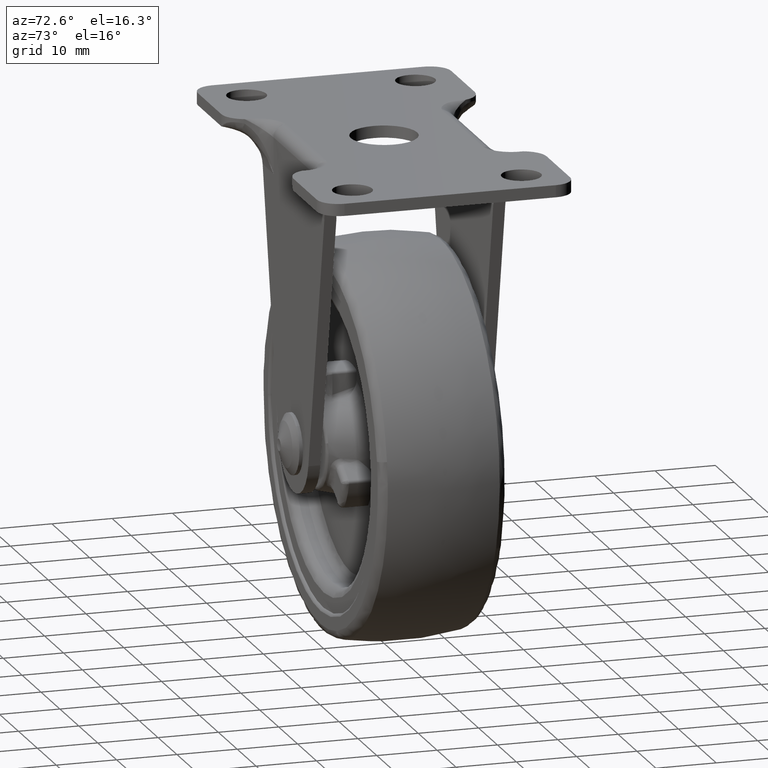
[diagram: clean part render]
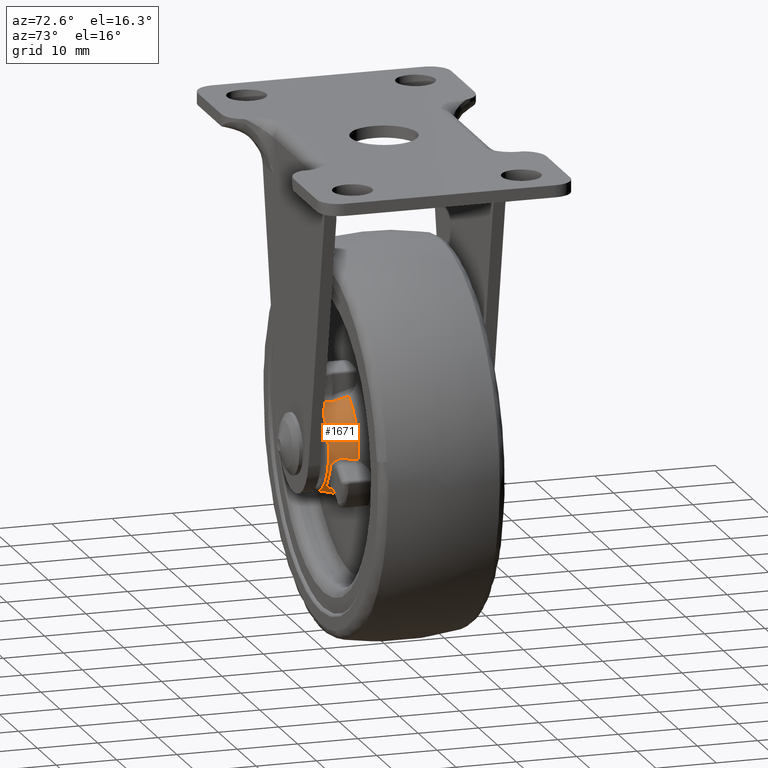
[diagram: same view with one face highlighted and labeled with its STEP entity id]
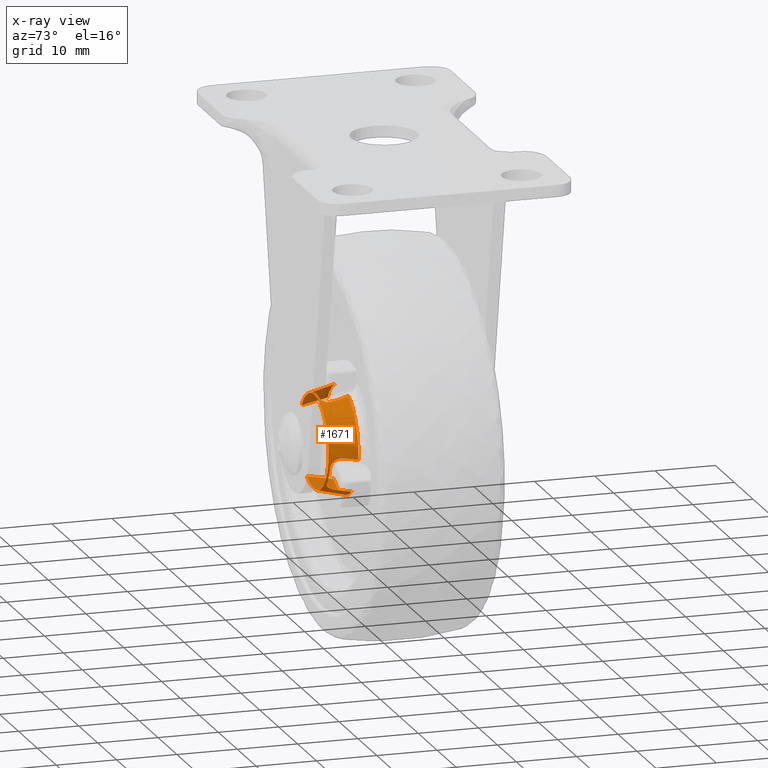
[diagram: x-ray of the same camera — body ghosted, the highlighted face saturated]
A machine part, auxiliary view. The second image highlights one B-rep face of the part: STEP entity #1671.
The next image is the same camera in x-ray: the body ghosted, the highlighted face saturated — about 8% of this face is hidden behind the body in this view.
In plain terms, the highlighted face is a freeform B-spline surface patch.
Its self-contained STEP definition (entity closure, byte-faithful):
#1216=CARTESIAN_POINT('',(-30.521903171111529,-11.620163000462121,-43.840625128461362));
#1217=VERTEX_POINT('',#1216);
#1218=CARTESIAN_POINT('',(-27.779560120021689,-11.620162999858840,-54.749107965422908));
#1219=VERTEX_POINT('',#1218);
#1234=CARTESIAN_POINT('',(-31.482304838477440,-7.019343857627149,-43.228124970851880));
#1235=VERTEX_POINT('',#1234);
#1236=CARTESIAN_POINT('',(-30.521903171111529,-11.620163000462121,-43.840625128461362));
#1237=CARTESIAN_POINT('',(-31.482304838477440,-7.019343857627149,-43.228124970851880));
#1238=QUASI_UNIFORM_CURVE('',1,(#1236,#1237),.UNSPECIFIED.,.F.,.U.);
#1239=EDGE_CURVE('',#1217,#1235,#1238,.T.);
#1345=CARTESIAN_POINT('',(-28.336130149566038,-7.019343857627146,-55.742967919150352));
#1346=VERTEX_POINT('',#1345);
#1354=CARTESIAN_POINT('',(-27.779560120021689,-11.620162999858840,-54.749107965422908));
#1355=CARTESIAN_POINT('',(-28.336130149566038,-7.019343857627146,-55.742967919150352));
#1356=QUASI_UNIFORM_CURVE('',1,(#1354,#1355),.UNSPECIFIED.,.F.,.U.);
#1357=EDGE_CURVE('',#1219,#1346,#1356,.T.);
#1362=CARTESIAN_POINT('',(-30.497893129343801,-11.735183479433900,-43.855937632454832));
#1363=CARTESIAN_POINT('',(-26.353834761798623,-11.735183479433903,-37.358044503111032));
#1364=CARTESIAN_POINT('',(-19.855941632454829,-11.735183479433900,-41.502102870656202));
#1365=CARTESIAN_POINT('',(-13.358048503111032,-11.735183479433903,-45.646161238201373));
#1366=CARTESIAN_POINT('',(-17.502106870656199,-11.735183479433900,-52.144054367545174));
#1367=CARTESIAN_POINT('',(-21.415562645197081,-11.735183479433905,-58.280362096348632));
#1368=CARTESIAN_POINT('',(-27.765645869159691,-11.735183479433902,-54.724261466359522));
#1369=CARTESIAN_POINT('',(-31.506915131205790,-6.901447867081980,-43.212429654311833));
#1370=CARTESIAN_POINT('',(-26.719348785517614,-6.901447867081980,-35.705514523106025));
#1371=CARTESIAN_POINT('',(-19.212433654311820,-6.901447867081980,-40.493080868794209));
#1372=CARTESIAN_POINT('',(-11.705518523106027,-6.901447867081980,-45.280647214482386));
#1373=CARTESIAN_POINT('',(-16.493084868794210,-6.901447867081980,-52.787562345688180));
#1374=CARTESIAN_POINT('',(-21.014239616098028,-6.901447867081981,-59.876743472885565));
#1375=CARTESIAN_POINT('',(-28.350392256576267,-6.901447867081981,-55.768435580470054));
#1383=(BOUNDED_SURFACE()B_SPLINE_SURFACE(2,1,((#1362,#1369),(#1363,#1370),(#1364,#1371),(#1365,#1372),(#1366,#1373),(#1367,#1374),(#1368,#1375)),.UNSPECIFIED.,.F.,.F.,.U.)B_SPLINE_SURFACE_WITH_KNOTS((3,2,2,3),(2,2),(0.0,14.752011537330560,29.504023074661131,43.665954150498472),(0.0,4.979681504704345),.UNSPECIFIED.)GEOMETRIC_REPRESENTATION_ITEM()RATIONAL_B_SPLINE_SURFACE(((1.0,1.0),(0.707106781186548,0.707106781186548),(1.0,1.0),(0.707106781186548,0.707106781186548),(1.0,1.0),(0.718822509939086,0.718822509939086),(0.977505800795127,0.977505800795127)))REPRESENTATION_ITEM('')SURFACE());
#1384=CARTESIAN_POINT('',(-24.0,-11.620162999999980,-55.735342599999981));
#1385=VERTEX_POINT('',#1384);
#1386=CARTESIAN_POINT('',(-27.779560120021689,-11.620162999858840,-54.749107965422908));
#1387=CARTESIAN_POINT('',(-27.169534373537310,-11.620162999868970,-55.090993053788772));
#1388=CARTESIAN_POINT('',(-25.933234538840392,-11.620162999903810,-55.576998136075588));
#1389=CARTESIAN_POINT('',(-24.617021184018359,-11.620162999965791,-55.735477880560737));
#1390=CARTESIAN_POINT('',(-24.0,-11.620162999999980,-55.735342599999981));
#1391=B_SPLINE_CURVE_WITH_KNOTS('',3,(#1386,#1387,#1388,#1389,#1390),.UNSPECIFIED.,.F.,.U.,(4,1,4),(0.000000010022046,2.097847339258627,3.948896073668416),.UNSPECIFIED.);
#1392=EDGE_CURVE('',#1219,#1385,#1391,.T.);
#1393=ORIENTED_EDGE('',*,*,#1392,.F.);
#1394=ORIENTED_EDGE('',*,*,#1357,.T.);
#1395=CARTESIAN_POINT('',(-18.780244909564299,-7.019343857627150,-55.177028507283012));
#1396=VERTEX_POINT('',#1395);
#1397=CARTESIAN_POINT('',(-28.336130149566038,-7.019343857627146,-55.742967919150352));
#1398=CARTESIAN_POINT('',(-27.830753127024920,-7.019343857627145,-56.026028487641788));
#1399=CARTESIAN_POINT('',(-26.594687953625790,-7.019343857627158,-56.567129219824920));
#1400=CARTESIAN_POINT('',(-24.820395861691971,-7.019343857627105,-56.900408018629093));
#1401=CARTESIAN_POINT('',(-23.262727862494671,-7.019343857627209,-56.870365145815207));
#1402=CARTESIAN_POINT('',(-21.985431716029129,-7.019343857627066,-56.673955675565153));
#1403=CARTESIAN_POINT('',(-20.468463085708400,-7.019343857627294,-56.213014599870370));
#1404=CARTESIAN_POINT('',(-19.376362099764080,-7.019343857627004,-55.610832839058823));
#1405=CARTESIAN_POINT('',(-18.780244909564299,-7.019343857627150,-55.177028507283012));
#1406=B_SPLINE_CURVE_WITH_KNOTS('',3,(#1397,#1398,#1399,#1400,#1401,#1402,#1403,#1404,#1405),.UNSPECIFIED.,.F.,.U.,(4,1,1,1,1,1,4),(0.000000067972939,1.737769646292826,4.028486071667845,5.371273599984172,6.398145603506757,7.898971404737543,10.110677664032149),.UNSPECIFIED.);
#1407=EDGE_CURVE('',#1346,#1396,#1406,.T.);
#1408=ORIENTED_EDGE('',*,*,#1407,.T.);
#1409=CARTESIAN_POINT('',(-19.287921292214548,-9.259671928813642,-54.856732905553400));
#1410=VERTEX_POINT('',#1409);
#1411=CARTESIAN_POINT('',(-18.780244909564299,-7.019343857627150,-55.177028507283012));
#1412=CARTESIAN_POINT('',(-19.287921292214548,-9.259671928813642,-54.856732905553400));
#1413=QUASI_UNIFORM_CURVE('',1,(#1411,#1412),.UNSPECIFIED.,.F.,.U.);
#1414=EDGE_CURVE('',#1396,#1410,#1413,.T.);
#1415=ORIENTED_EDGE('',*,*,#1414,.T.);
#1416=CARTESIAN_POINT('',(-18.290854156653150,-11.259671928813640,-53.350696526531607));
#1417=VERTEX_POINT('',#1416);
#1418=CARTESIAN_POINT('',(-18.290854156653150,-11.259671928813640,-53.350696526531607));
#1419=CARTESIAN_POINT('',(-18.334300139264329,-11.259671928813640,-53.397052970852272));
#1420=CARTESIAN_POINT('',(-18.377351462773881,-11.256040720759270,-53.443167168678173));
#1421=CARTESIAN_POINT('',(-18.462171558801451,-11.241864181647820,-53.534405695467413));
#1422=CARTESIAN_POINT('',(-18.545874961909359,-11.220772964573699,-53.624831796039082));
#1423=CARTESIAN_POINT('',(-18.627273956315740,-11.186088272106300,-53.713761390287210));
#1424=CARTESIAN_POINT('',(-18.687377527976931,-11.154898025664069,-53.779951483604961));
#1425=CARTESIAN_POINT('',(-18.707316924522789,-11.143595865355980,-53.802000704688027));
#1426=CARTESIAN_POINT('',(-18.746484423029511,-11.119465066968750,-53.845524255424692));
#1427=CARTESIAN_POINT('',(-18.765711931289481,-11.106645161153940,-53.866997125230291));
#1428=CARTESIAN_POINT('',(-18.860078490045339,-11.038881077089620,-53.972993606184929));
#1429=CARTESIAN_POINT('',(-18.929974365507931,-10.973063742897921,-54.053448602608107));
#1430=CARTESIAN_POINT('',(-19.025754669254280,-10.857462103082630,-54.168618588551183));
#1431=CARTESIAN_POINT('',(-19.056218692109478,-10.815937940027030,-54.206174512332353));
#1432=CARTESIAN_POINT('',(-19.112617599089400,-10.729096722169720,-54.277955144211226));
#1433=CARTESIAN_POINT('',(-19.164848771095169,-10.638083880997060,-54.346827350406890));
#1434=CARTESIAN_POINT('',(-19.208686487627141,-10.539033446446391,-54.410359422965918));
#1435=CARTESIAN_POINT('',(-19.248179846135049,-10.435991169124121,-54.471366865916991));
#1436=CARTESIAN_POINT('',(-19.265793574935302,-10.382247285626750,-54.500704051109402));
#1437=CARTESIAN_POINT('',(-19.310915623145640,-10.218312637271250,-54.583403811774218));
#1438=CARTESIAN_POINT('',(-19.331163106192790,-10.104624517127110,-54.632070340796972));
#1439=CARTESIAN_POINT('',(-19.346909591275949,-9.927952312775975,-54.696399509141131));
#1440=CARTESIAN_POINT('',(-19.349703744634500,-9.867739434923365,-54.716468421545208));
#1441=CARTESIAN_POINT('',(-19.350275356402399,-9.746807161040389,-54.753247247728282));
#1442=CARTESIAN_POINT('',(-19.348081989878981,-9.686205582645259,-54.769942433162058));
#1443=CARTESIAN_POINT('',(-19.334368829839999,-9.504029971811729,-54.815235167064017));
#1444=CARTESIAN_POINT('',(-19.315758360884200,-9.382091503685279,-54.839086788816360));
#1445=CARTESIAN_POINT('',(-19.287921292214548,-9.259671928813642,-54.856732905553400));
#1446=B_SPLINE_CURVE_WITH_KNOTS('',3,(#1418,#1419,#1420,#1421,#1422,#1423,#1424,#1425,#1426,#1427,#1428,#1429,#1430,#1431,#1432,#1433,#1434,#1435,#1436,#1437,#1438,#1439,#1440,#1441,#1442,#1443,#1444,#1445),.UNSPECIFIED.,.F.,.U.,(4,2,1,2,2,2,2,2,1,2,2,2,2,2,4),(0.0,0.062499999999994,0.124999999999988,0.187499999999983,0.218749999999983,0.249999999999983,0.374999999999982,0.437499999999983,0.499999999999984,0.562499999999986,0.624999999999987,0.749999999999991,0.812499999999993,0.874999999999995,1.0),.UNSPECIFIED.);
#1447=EDGE_CURVE('',#1417,#1410,#1446,.T.);
#1448=ORIENTED_EDGE('',*,*,#1447,.F.);
#1449=CARTESIAN_POINT('',(-16.511584264267050,-11.259671928813640,-50.268910311748492));
#1450=VERTEX_POINT('',#1449);
#1451=CARTESIAN_POINT('',(-18.290854156653150,-11.259671928813640,-53.350696526531607));
#1452=CARTESIAN_POINT('',(-17.804750458521919,-11.259671928813690,-52.832451765611687));
#1453=CARTESIAN_POINT('',(-17.106615071985811,-11.259671928813550,-51.846950203180690));
#1454=CARTESIAN_POINT('',(-16.652499872925251,-11.259671928813720,-50.734180553218749));
#1455=CARTESIAN_POINT('',(-16.511584264267050,-11.259671928813640,-50.268910311748492));
#1456=B_SPLINE_CURVE_WITH_KNOTS('',3,(#1451,#1452,#1453,#1454,#1455),.UNSPECIFIED.,.F.,.U.,(4,1,4),(9.460093E-009,2.131538586693377,3.589974836920728),.UNSPECIFIED.);
#1457=EDGE_CURVE('',#1417,#1450,#1456,.T.);
#1458=ORIENTED_EDGE('',*,*,#1457,.T.);
#1459=CARTESIAN_POINT('',(-15.705852234808701,-9.259671928813642,-48.652406598867501));
#1460=VERTEX_POINT('',#1459);
#1461=CARTESIAN_POINT('',(-15.705852234808701,-9.259671928813642,-48.652406598867501));
#1462=CARTESIAN_POINT('',(-15.735076503370641,-9.382191059832609,-48.637109626664369));
#1463=CARTESIAN_POINT('',(-15.765158337861390,-9.504630155524387,-48.632870863589261));
#1464=CARTESIAN_POINT('',(-15.811596290839530,-9.688170759322560,-48.643865917060673));
#1465=CARTESIAN_POINT('',(-15.827341824850100,-9.749483159050278,-48.650485907804772));
#1466=CARTESIAN_POINT('',(-15.858827752049899,-9.870054385003327,-48.669479850739393));
#1467=CARTESIAN_POINT('',(-15.890421295934690,-9.989026963739235,-48.694224691625742));
#1468=CARTESIAN_POINT('',(-15.922394395663030,-10.104745427838370,-48.730515129554803));
#1469=CARTESIAN_POINT('',(-15.946609864804509,-10.190255428703519,-48.762183770155133));
#1470=CARTESIAN_POINT('',(-15.954721308099010,-10.218545220367410,-48.773482907957707));
#1471=CARTESIAN_POINT('',(-15.971043688226050,-10.274682594482821,-48.797602195854317));
#1472=CARTESIAN_POINT('',(-15.979274595429620,-10.302595338364700,-48.810457645404959));
#1473=CARTESIAN_POINT('',(-16.020310841163390,-10.439595958558430,-48.877927514606199));
#1474=CARTESIAN_POINT('',(-16.052981431155381,-10.541893954328490,-48.942319718475332));
#1475=CARTESIAN_POINT('',(-16.102886885320959,-10.684180723641550,-49.054281668186661));
#1476=CARTESIAN_POINT('',(-16.119674282041039,-10.729736717300860,-49.094181740936193));
#1477=CARTESIAN_POINT('',(-16.145258114953350,-10.795101428867341,-49.158044096837543));
#1478=CARTESIAN_POINT('',(-16.153871982533389,-10.816434282285430,-49.180052387595588));
#1479=CARTESIAN_POINT('',(-16.171055438345991,-10.857573954333279,-49.224886910652351));
#1480=CARTESIAN_POINT('',(-16.179647437374509,-10.877440922630271,-49.247766974352707));
#1481=CARTESIAN_POINT('',(-16.222675754436871,-10.973296533382920,-49.364434776455838));
#1482=CARTESIAN_POINT('',(-16.257321139155259,-11.038964112227880,-49.464946722687529));
#1483=CARTESIAN_POINT('',(-16.301909665432831,-11.106682574983290,-49.599599862297843));
#1484=CARTESIAN_POINT('',(-16.310891306424359,-11.119500492379061,-49.626986127054543));
#1485=CARTESIAN_POINT('',(-16.329007597400050,-11.143637709667511,-49.682692141943328));
#1486=CARTESIAN_POINT('',(-16.338143200384959,-11.154950176182449,-49.711016711509288));
#1487=CARTESIAN_POINT('',(-16.365433070396300,-11.186153245148081,-49.796225589300207));
#1488=CARTESIAN_POINT('',(-16.383597491654150,-11.203492008859930,-49.853727414862831));
#1489=CARTESIAN_POINT('',(-16.438180054438739,-11.245298678444090,-50.028230114689833));
#1490=CARTESIAN_POINT('',(-16.474707061706159,-11.259671928813640,-50.147199314327032));
#1491=CARTESIAN_POINT('',(-16.511584264267050,-11.259671928813640,-50.268910311748492));
#1492=B_SPLINE_CURVE_WITH_KNOTS('',3,(#1461,#1462,#1463,#1464,#1465,#1466,#1467,#1468,#1469,#1470,#1471,#1472,#1473,#1474,#1475,#1476,#1477,#1478,#1479,#1480,#1481,#1482,#1483,#1484,#1485,#1486,#1487,#1488,#1489,#1490,#1491),.UNSPECIFIED.,.F.,.U.,(4,2,2,1,2,2,2,2,2,2,2,2,2,2,2,4),(0.0,0.124999999999996,0.187499999999993,0.249999999999989,0.312499999999986,0.343749999999985,0.374999999999984,0.499999999999983,0.562499999999982,0.593749999999981,0.624999999999981,0.749999999999995,0.781249999999997,0.812499999999999,0.874999999999998,1.0),.UNSPECIFIED.);
#1493=EDGE_CURVE('',#1460,#1450,#1492,.T.);
#1494=ORIENTED_EDGE('',*,*,#1493,.F.);
#1495=CARTESIAN_POINT('',(-15.174629878417500,-7.019343857627150,-48.931919297168299));
#1496=VERTEX_POINT('',#1495);
#1497=CARTESIAN_POINT('',(-15.705852234808701,-9.259671928813642,-48.652406598867501));
#1498=CARTESIAN_POINT('',(-15.174629878417500,-7.019343857627150,-48.931919297168299));
#1499=QUASI_UNIFORM_CURVE('',1,(#1497,#1498),.UNSPECIFIED.,.F.,.U.);
#1500=EDGE_CURVE('',#1460,#1496,#1499,.T.);
#1501=ORIENTED_EDGE('',*,*,#1500,.T.);
#1502=CARTESIAN_POINT('',(-20.394385070124098,-7.019343857627150,-39.891039236508043));
#1503=VERTEX_POINT('',#1502);
#1504=CARTESIAN_POINT('',(-15.174629878417500,-7.019343857627150,-48.931919297168299));
#1505=CARTESIAN_POINT('',(-15.079585592816130,-7.019343857627152,-48.035914164135740));
#1506=CARTESIAN_POINT('',(-15.152244269863710,-7.019343857627146,-46.508759335802907));
#1507=CARTESIAN_POINT('',(-15.726971495341139,-7.019343857627167,-44.667940005861809));
#1508=CARTESIAN_POINT('',(-16.459015610190580,-7.019343857627118,-43.242626054752662));
#1509=CARTESIAN_POINT('',(-17.297833918362048,-7.019343857627212,-42.119506014690621));
#1510=CARTESIAN_POINT('',(-18.604246125481239,-7.019343857627115,-40.872126375109929));
#1511=CARTESIAN_POINT('',(-19.650636600251250,-7.019343857627169,-40.221434303263877));
#1512=CARTESIAN_POINT('',(-20.394385070124098,-7.019343857627150,-39.891039236508043));
#1513=B_SPLINE_CURVE_WITH_KNOTS('',3,(#1504,#1505,#1506,#1507,#1508,#1509,#1510,#1511,#1512),.UNSPECIFIED.,.F.,.U.,(4,1,1,1,1,1,4),(0.000000085950179,2.702962895313599,4.534030465439199,5.754666997979720,7.498530175892071,8.719239321388466,11.160624258728950),.UNSPECIFIED.);
#1514=EDGE_CURVE('',#1496,#1503,#1513,.T.);
#1515=ORIENTED_EDGE('',*,*,#1514,.T.);
#1516=CARTESIAN_POINT('',(-20.417931006617248,-9.259671928813591,-40.490847681649342));
#1517=VERTEX_POINT('',#1516);
#1518=CARTESIAN_POINT('',(-20.394385070124098,-7.019343857627150,-39.891039236508043));
#1519=CARTESIAN_POINT('',(-20.417931006617248,-9.259671928813591,-40.490847681649342));
#1520=QUASI_UNIFORM_CURVE('',1,(#1518,#1519),.UNSPECIFIED.,.F.,.U.);
#1521=EDGE_CURVE('',#1503,#1517,#1520,.T.);
#1522=ORIENTED_EDGE('',*,*,#1521,.T.);
#1523=CARTESIAN_POINT('',(-22.220730337654299,-11.259671928813640,-40.380380402485500));
#1524=VERTEX_POINT('',#1523);
#1525=CARTESIAN_POINT('',(-22.220730337654299,-11.259671928813640,-40.380380402485500));
#1526=CARTESIAN_POINT('',(-22.158861487937902,-11.259671928813640,-40.394827504958840));
#1527=CARTESIAN_POINT('',(-22.097399759390751,-11.256040720759261,-40.409053945871683));
#1528=CARTESIAN_POINT('',(-21.975974829373609,-11.241864181647809,-40.436891040388382));
#1529=CARTESIAN_POINT('',(-21.855811827559361,-11.220772964573690,-40.464167263577181));
#1530=CARTESIAN_POINT('',(-21.738097042589111,-11.186088272106300,-40.490196063451563));
#1531=CARTESIAN_POINT('',(-21.650722954466492,-11.154898025664060,-40.509152236709440));
#1532=CARTESIAN_POINT('',(-21.621658070601960,-11.143595865355969,-40.515395650112772));
#1533=CARTESIAN_POINT('',(-21.564381820747759,-11.119465066968729,-40.527553923453937));
#1534=CARTESIAN_POINT('',(-21.536172015873959,-11.106645161153930,-40.533468999155751));
#1535=CARTESIAN_POINT('',(-21.397193091277579,-11.038881077089600,-40.562194595828743));
#1536=CARTESIAN_POINT('',(-21.292569082782421,-10.973063742897899,-40.582498701387493));
#1537=CARTESIAN_POINT('',(-21.144938797329051,-10.857462103082611,-40.607861884642489));
#1538=CARTESIAN_POINT('',(-21.097182401844361,-10.815937940027000,-40.615466540445972));
#1539=CARTESIAN_POINT('',(-21.006819097647590,-10.729096722169700,-40.628419110696832));
#1540=CARTESIAN_POINT('',(-20.921059012090730,-10.638083385736341,-40.639216601025517));
#1541=CARTESIAN_POINT('',(-20.844119184407390,-10.539033446446361,-40.645415069306473));
#1542=CARTESIAN_POINT('',(-20.771538509737880,-10.435991169124090,-40.649113599579557));
#1543=CARTESIAN_POINT('',(-20.737324897685610,-10.382247285626720,-40.649698943579750));
#1544=CARTESIAN_POINT('',(-20.643143779957811,-10.218312637271220,-40.647425903268271));
#1545=CARTESIAN_POINT('',(-20.590873587986518,-10.104624517127069,-40.640627473438421));
#1546=CARTESIAN_POINT('',(-20.527289651454559,-9.927952312775927,-40.622099745368679));
#1547=CARTESIAN_POINT('',(-20.508512386807059,-9.867739434923337,-40.614485096957210));
#1548=CARTESIAN_POINT('',(-20.476375183127200,-9.746807161040355,-40.596590714177758));
#1549=CARTESIAN_POINT('',(-20.463013411682361,-9.686205582645227,-40.586343610331802));
#1550=CARTESIAN_POINT('',(-20.430645333535900,-9.504029971811686,-40.551821298420897));
#1551=CARTESIAN_POINT('',(-20.419294457654839,-9.382091503685226,-40.523778348652677));
#1552=CARTESIAN_POINT('',(-20.417931006617248,-9.259671928813591,-40.490847681649342));
#1553=B_SPLINE_CURVE_WITH_KNOTS('',3,(#1525,#1526,#1527,#1528,#1529,#1530,#1531,#1532,#1533,#1534,#1535,#1536,#1537,#1538,#1539,#1540,#1541,#1542,#1543,#1544,#1545,#1546,#1547,#1548,#1549,#1550,#1551,#1552),.UNSPECIFIED.,.F.,.U.,(4,2,1,2,2,2,2,2,1,2,2,2,2,2,4),(0.0,0.062500000000001,0.125000000000002,0.187500000000002,0.218750000000002,0.250000000000003,0.375000000000003,0.437500000000004,0.500000000000004,0.562500000000004,0.625000000000004,0.750000000000002,0.812500000000002,0.875000000000001,1.0),.UNSPECIFIED.);
#1554=EDGE_CURVE('',#1524,#1517,#1553,.T.);
#1555=ORIENTED_EDGE('',*,*,#1554,.F.);
#1556=CARTESIAN_POINT('',(-25.779270434882200,-11.259671928813640,-40.380380582881912));
#1557=VERTEX_POINT('',#1556);
#1558=CARTESIAN_POINT('',(-22.220730337654299,-11.259671928813640,-40.380380402485500));
#1559=CARTESIAN_POINT('',(-22.766951346414139,-11.259671928813610,-40.252733299002308));
#1560=CARTESIAN_POINT('',(-23.961621593393971,-11.259671928813709,-40.106590366577102));
#1561=CARTESIAN_POINT('',(-25.160227953546471,-11.259671928813621,-40.235666794887983));
#1562=CARTESIAN_POINT('',(-25.779270434882200,-11.259671928813640,-40.380380582881912));
#1563=B_SPLINE_CURVE_WITH_KNOTS('',3,(#1558,#1559,#1560,#1561,#1562),.UNSPECIFIED.,.F.,.U.,(4,1,4),(9.461059E-009,1.682806638364058,3.589974836920706),.UNSPECIFIED.);
#1564=EDGE_CURVE('',#1524,#1557,#1563,.T.);
#1565=ORIENTED_EDGE('',*,*,#1564,.T.);
#1566=CARTESIAN_POINT('',(-27.582069730278199,-9.259671928813591,-40.490848033168653));
#1567=VERTEX_POINT('',#1566);
#1568=CARTESIAN_POINT('',(-27.582069730278199,-9.259671928813591,-40.490848033168653));
#1569=CARTESIAN_POINT('',(-27.580705162526140,-9.382191059832557,-40.523805478251880));
#1570=CARTESIAN_POINT('',(-27.569335121784430,-9.504630155524337,-40.551976492650873));
#1571=CARTESIAN_POINT('',(-27.536594149673171,-9.688170759322519,-40.586695412894002));
#1572=CARTESIAN_POINT('',(-27.522988302510679,-9.749483159050252,-40.597021449971251));
#1573=CARTESIAN_POINT('',(-27.490796101811370,-9.870054385003298,-40.614792091320680));
#1574=CARTESIAN_POINT('',(-27.453569669048822,-9.989026963739207,-40.629780482477337));
#1575=CARTESIAN_POINT('',(-27.406154678023590,-10.104745427838351,-40.639324780115253));
#1576=CARTESIAN_POINT('',(-27.366621096189640,-10.190255428703489,-40.644461671256160));
#1577=CARTESIAN_POINT('',(-27.352780034164510,-10.218545220367391,-40.645836818309263));
#1578=CARTESIAN_POINT('',(-27.323730928061309,-10.274682594482810,-40.647912770201202));
#1579=CARTESIAN_POINT('',(-27.308482328571639,-10.302595338364689,-40.648613220160392));
#1580=CARTESIAN_POINT('',(-27.229533584986449,-10.439595958558421,-40.650416716841150));
#1581=CARTESIAN_POINT('',(-27.157433005634111,-10.541893954328479,-40.646514175796263));
#1582=CARTESIAN_POINT('',(-27.035518385844071,-10.684180723641539,-40.633752592035371));
#1583=CARTESIAN_POINT('',(-26.992570210870088,-10.729736717300860,-40.628340867683619));
#1584=CARTESIAN_POINT('',(-26.924471871857840,-10.795101428867341,-40.618565938961183));
#1585=CARTESIAN_POINT('',(-26.901105199177469,-10.816434282285440,-40.615021621731302));
#1586=CARTESIAN_POINT('',(-26.853685635337449,-10.857573954333279,-40.607485669461447));
#1587=CARTESIAN_POINT('',(-26.829574919418480,-10.877440922630280,-40.603486527039252));
#1588=CARTESIAN_POINT('',(-26.707023480462301,-10.973296533382930,-40.582416241645781));
#1589=CARTESIAN_POINT('',(-26.602654889282640,-11.038964112227889,-40.562164051819963));
#1590=CARTESIAN_POINT('',(-26.463747586541970,-11.106682574983310,-40.533452278488468));
#1591=CARTESIAN_POINT('',(-26.435539565052132,-11.119500492379061,-40.527537475376448));
#1592=CARTESIAN_POINT('',(-26.378238595527019,-11.143637709667519,-40.515373636139380));
#1593=CARTESIAN_POINT('',(-26.349140997239161,-11.154950176182471,-40.509123015620212));
#1594=CARTESIAN_POINT('',(-26.261703009438580,-11.186153245148089,-40.490152297420543));
#1595=CARTESIAN_POINT('',(-26.202822757108461,-11.203492008859950,-40.477132234893588));
#1596=CARTESIAN_POINT('',(-26.024407704637021,-11.245298678444090,-40.437150770955171));
#1597=CARTESIAN_POINT('',(-25.903113851849550,-11.259671928813599,-40.409299487354403));
#1598=CARTESIAN_POINT('',(-25.779270434882200,-11.259671928813599,-40.380380582881912));
#1599=B_SPLINE_CURVE_WITH_KNOTS('',3,(#1568,#1569,#1570,#1571,#1572,#1573,#1574,#1575,#1576,#1577,#1578,#1579,#1580,#1581,#1582,#1583,#1584,#1585,#1586,#1587,#1588,#1589,#1590,#1591,#1592,#1593,#1594,#1595,#1596,#1597,#1598),.UNSPECIFIED.,.F.,.U.,(4,2,2,1,2,2,2,2,2,2,2,2,2,2,2,4),(0.0,0.125000000000005,0.187500000000008,0.250000000000011,0.312500000000013,0.343750000000014,0.375000000000014,0.500000000000018,0.562500000000018,0.593750000000016,0.625000000000015,0.750000000000011,0.781250000000011,0.812500000000010,0.875000000000006,1.0),.UNSPECIFIED.);
#1600=EDGE_CURVE('',#1567,#1557,#1599,.T.);
#1601=ORIENTED_EDGE('',*,*,#1600,.F.);
#1602=CARTESIAN_POINT('',(-27.605615811064951,-7.019343857627150,-39.891039628325252));
#1603=VERTEX_POINT('',#1602);
#1604=CARTESIAN_POINT('',(-27.582069730278199,-9.259671928813591,-40.490848033168653));
#1605=CARTESIAN_POINT('',(-27.605615811064951,-7.019343857627150,-39.891039628325252));
#1606=QUASI_UNIFORM_CURVE('',1,(#1604,#1605),.UNSPECIFIED.,.F.,.U.);
#1607=EDGE_CURVE('',#1567,#1603,#1606,.T.);
#1608=ORIENTED_EDGE('',*,*,#1607,.T.);
#1609=CARTESIAN_POINT('',(-27.605615811064951,-7.019343857627150,-39.891039628325252));
#1610=CARTESIAN_POINT('',(-28.173620738599020,-7.019343857627158,-40.143487726390717));
#1611=CARTESIAN_POINT('',(-29.091405093029479,-7.019343857627141,-40.673400388452961));
#1612=CARTESIAN_POINT('',(-30.416033042324891,-7.019343857627196,-41.792721297512010));
#1613=CARTESIAN_POINT('',(-31.119122755943131,-7.019343857627052,-42.658406041801193));
#1614=CARTESIAN_POINT('',(-31.482304838477440,-7.019343857627149,-43.228124970851880));
#1615=B_SPLINE_CURVE_WITH_KNOTS('',3,(#1609,#1610,#1611,#1612,#1613,#1614),.UNSPECIFIED.,.F.,.U.,(4,1,1,4),(0.000000018295090,1.864716858614886,3.161904679944696,5.188771120367405),.UNSPECIFIED.);
#1616=EDGE_CURVE('',#1603,#1235,#1615,.T.);
#1617=ORIENTED_EDGE('',*,*,#1616,.T.);
#1618=ORIENTED_EDGE('',*,*,#1239,.F.);
#1619=CARTESIAN_POINT('',(-27.113130539428880,-11.620163000853250,-40.918752799591672));
#1620=VERTEX_POINT('',#1619);
#1621=CARTESIAN_POINT('',(-27.113130539428880,-11.620163000853250,-40.918752799591672));
#1622=CARTESIAN_POINT('',(-27.786574251591990,-11.620163000795470,-41.214483689810450));
#1623=CARTESIAN_POINT('',(-29.088393688674330,-11.620163000667210,-42.025635617732810));
#1624=CARTESIAN_POINT('',(-30.101246784787140,-11.620163000531130,-43.180257895051483));
#1625=CARTESIAN_POINT('',(-30.521903171111529,-11.620163000462121,-43.840625128461362));
#1626=B_SPLINE_CURVE_WITH_KNOTS('',3,(#1621,#1622,#1623,#1624,#1625),.UNSPECIFIED.,.F.,.U.,(4,1,4),(0.000000018630543,2.206451052138030,4.555212674818586),.UNSPECIFIED.);
#1627=EDGE_CURVE('',#1620,#1217,#1626,.T.);
#1628=ORIENTED_EDGE('',*,*,#1627,.F.);
#1629=CARTESIAN_POINT('',(-24.0,-11.620162999999980,-40.264649400000032));
#1630=VERTEX_POINT('',#1629);
#1631=CARTESIAN_POINT('',(-24.0,-11.620162999999980,-40.264649400000032));
#1632=CARTESIAN_POINT('',(-24.634136032826369,-11.620162999999740,-40.264471424646139));
#1633=CARTESIAN_POINT('',(-25.702021951020029,-11.620163000172321,-40.396777846222662));
#1634=CARTESIAN_POINT('',(-26.715958035346230,-11.620163000625450,-40.744113864756159));
#1635=CARTESIAN_POINT('',(-27.113130539428880,-11.620163000853250,-40.918752799591672));
#1636=B_SPLINE_CURVE_WITH_KNOTS('',3,(#1631,#1632,#1633,#1634,#1635),.UNSPECIFIED.,.F.,.U.,(4,1,4),(0.000000010738209,1.902357482199711,3.203981814374681),.UNSPECIFIED.);
#1637=EDGE_CURVE('',#1630,#1620,#1636,.T.);
#1638=ORIENTED_EDGE('',*,*,#1637,.F.);
#1639=CARTESIAN_POINT('',(-16.484091778375660,-11.620162999971649,-46.170594287321649));
#1640=VERTEX_POINT('',#1639);
#1641=CARTESIAN_POINT('',(-16.484091778375660,-11.620162999971649,-46.170594287321649));
#1642=CARTESIAN_POINT('',(-16.655139964712969,-11.620162999975040,-45.466553058861663));
#1643=CARTESIAN_POINT('',(-17.087004802706449,-11.620162999980190,-44.384365749767603));
#1644=CARTESIAN_POINT('',(-18.003236943434938,-11.620162999986620,-43.053719343630817));
#1645=CARTESIAN_POINT('',(-18.851177861527599,-11.620162999990781,-42.187457350627753));
#1646=CARTESIAN_POINT('',(-19.882241154078361,-11.620162999994410,-41.411389631565562));
#1647=CARTESIAN_POINT('',(-20.980153750412718,-11.620162999997470,-40.834338214628353));
#1648=CARTESIAN_POINT('',(-22.416922181389570,-11.620162999999360,-40.378876182570117));
#1649=CARTESIAN_POINT('',(-23.409675435319059,-11.620162999999970,-40.264530780793713));
#1650=CARTESIAN_POINT('',(-24.0,-11.620162999999980,-40.264649400000032));
#1651=B_SPLINE_CURVE_WITH_KNOTS('',3,(#1641,#1642,#1643,#1644,#1645,#1646,#1647,#1648,#1649,#1650),.UNSPECIFIED.,.F.,.U.,(4,1,1,1,1,1,1,4),(0.000000099490352,2.173453689976826,3.461434796161652,4.829946596360286,5.795879277500220,7.325351124814696,8.532850178126699,10.303801105701060),.UNSPECIFIED.);
#1652=EDGE_CURVE('',#1640,#1630,#1651,.T.);
#1653=ORIENTED_EDGE('',*,*,#1652,.F.);
#1654=CARTESIAN_POINT('',(-24.0,-11.620162999999980,-55.735342599999981));
#1655=CARTESIAN_POINT('',(-23.380305959086041,-11.620163000001501,-55.735499408473771));
#1656=CARTESIAN_POINT('',(-22.323282252154151,-11.620163000003499,-55.607582714546467));
#1657=CARTESIAN_POINT('',(-20.728569831584920,-11.620163000004750,-55.070076160547274));
#1658=CARTESIAN_POINT('',(-19.334801423408290,-11.620163000004320,-54.253213605394770));
#1659=CARTESIAN_POINT('',(-18.108352822466649,-11.620163000001440,-53.095941624763562));
#1660=CARTESIAN_POINT('',(-17.269672427075012,-11.620162999997920,-51.894502957987903));
#1661=CARTESIAN_POINT('',(-16.640938706667349,-11.620162999992450,-50.533656255319777));
#1662=CARTESIAN_POINT('',(-16.324588464476111,-11.620162999987190,-49.251438332946023));
#1663=CARTESIAN_POINT('',(-16.224685083950110,-11.620162999980071,-47.720571844250813));
#1664=CARTESIAN_POINT('',(-16.337402138226629,-11.620162999974600,-46.772674109280040));
#1665=CARTESIAN_POINT('',(-16.484091778375660,-11.620162999971649,-46.170594287321649));
#1666=B_SPLINE_CURVE_WITH_KNOTS('',3,(#1654,#1655,#1656,#1657,#1658,#1659,#1660,#1661,#1662,#1663,#1664,#1665),.UNSPECIFIED.,.F.,.U.,(4,1,1,1,1,1,1,1,1,4),(0.000000137065323,1.859054335959431,3.171342804023952,5.030435023673995,6.670817597512145,8.201725894020884,9.404665870454366,11.154405453065090,12.138627132875900,13.997669993539599),.UNSPECIFIED.);
#1667=EDGE_CURVE('',#1385,#1640,#1666,.T.);
#1668=ORIENTED_EDGE('',*,*,#1667,.F.);
#1669=EDGE_LOOP('',(#1393,#1394,#1408,#1415,#1448,#1458,#1494,#1501,#1515,#1522,#1555,#1565,#1601,#1608,#1617,#1618,#1628,#1638,#1653,#1668));
#1670=FACE_OUTER_BOUND('',#1669,.T.);
#1671=ADVANCED_FACE('',(#1670),#1383,.T.);